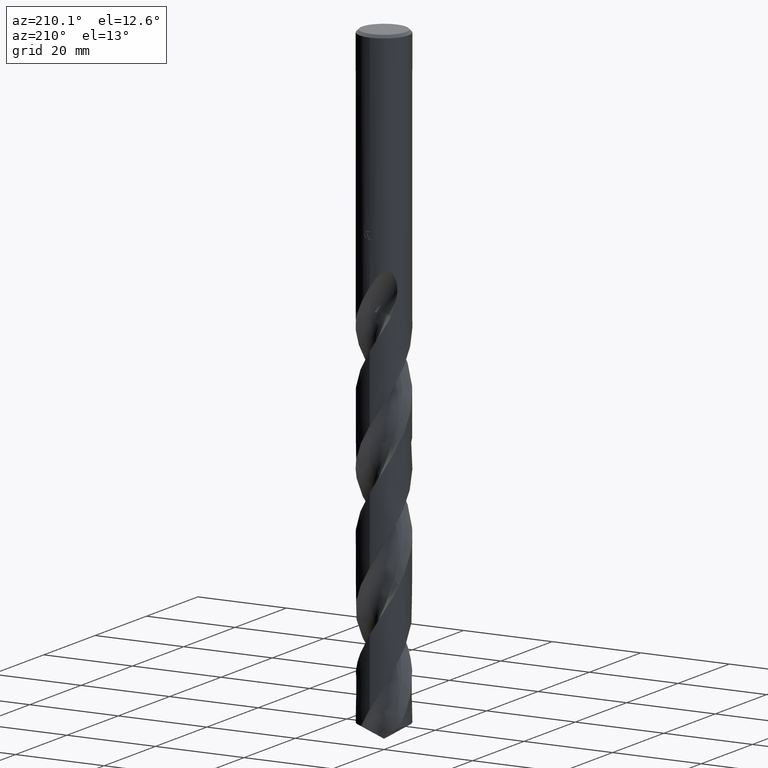
[diagram: clean part render]
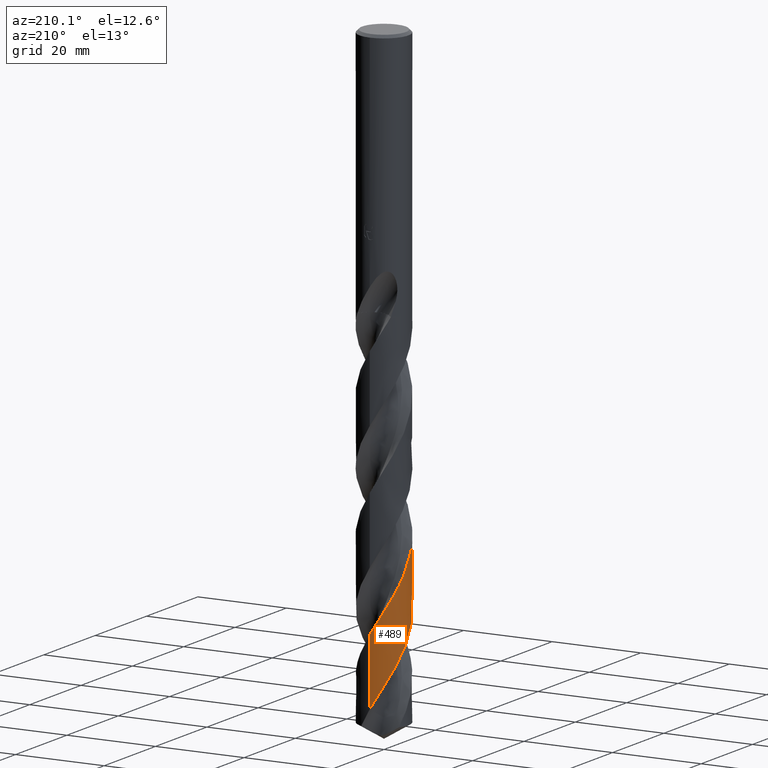
[diagram: same view with one face highlighted and labeled with its STEP entity id]
A machine part, auxiliary view. The second image highlights one B-rep face of the part: STEP entity #489.
In plain terms, the highlighted conical surface has half-angle 0 deg.
Its self-contained STEP definition (entity closure, byte-faithful):
#299=VERTEX_POINT('',#785);
#381=EDGE_CURVE('',#299,#647,#876,.T.);
#489=ADVANCED_FACE('',(#995),#996,.T.);
#527=VERTEX_POINT('',#1038);
#535=EDGE_CURVE('',#527,#299,#1046,.T.);
#543=EDGE_CURVE('',#647,#613,#1054,.T.);
#597=EDGE_CURVE('',#613,#527,#1111,.T.);
#613=VERTEX_POINT('',#1129);
#647=VERTEX_POINT('',#1163);
#785=CARTESIAN_POINT('',(4.0516365852814E-014,5.54999556858216,-135.019335527363));
#876=B_SPLINE_CURVE_WITH_KNOTS('',3,(#2819,#2820,#2821,#2822,#2823,#2824,#2825,#2826,#2827,#2828,#2829,#2830,#2831,#2832,#2833,#2834,#2835,#2836,#2837,#2838,#2839,#2840,#2841,#2842,#2843,#2844,#2845,#2846,#2847,#2848,#2849,#2850,#2851,#2852,#2853,#2854,#2855,#2856,#2857,#2858,#2859,#2860,#2861,#2862,#2863,#2864,#2865,#2866,#2867,#2868,#2869,#2870,#2871,#2872,#2873,#2874,#2875,#2876,#2877,#2878,#2879,#2880,#2881,#2882,#2883,#2884,#2885,#2886,#2887,#2888,#2889,#2890,#2891,#2892,#2893,#2894,#2895,#2896,#2897,#2898,#2899,#2900,#2901,#2902,#2903,#2904,#2905,#2906,#2907,#2908,#2909,#2910,#2911,#2912,#2913,#2914,#2915,#2916,#2917,#2918,#2919,#2920,#2921,#2922,#2923,#2924,#2925,#2926,#2927,#2928,#2929,#2930,#2931,#2932,#2933,#2934,#2935,#2936,#2937,#2938,#2939,#2940,#2941,#2942,#2943,#2944,#2945,#2946,#2947,#2948,#2949,#2950,#2951,#2952,#2953,#2954,#2955,#2956,#2957,#2958,#2959,#2960,#2961,#2962,#2963,#2964,#2965,#2966,#2967,#2968,#2969,#2970,#2971,#2972,#2973,#2974,#2975,#2976),.UNSPECIFIED.,.F.,.F.,(4,2,2,2,2,2,2,2,2,2,2,2,2,2,2,2,2,2,2,2,2,2,2,2,2,2,2,2,2,2,2,2,2,2,2,2,2,2,2,2,2,2,2,2,2,2,2,2,2,2,2,2,2,2,2,2,2,2,2,2,2,2,2,2,2,2,2,2,2,2,2,2,2,2,2,2,2,2,4),(0.0,1.46655868737656,3.41783290731923,5.26949046959095,5.74764628696772,7.95144570172864,9.54355369802347,11.1100185561849,12.6683297977426,14.2346658891406,15.793405792042,17.3595866141916,18.8742755995859,20.4399489714098,21.8692339213255,23.6874031627515,25.274196086025,27.2313110607265,27.9501409497025,29.3310392686889,30.0306007662757,31.6571620112534,33.4461055129922,34.5042760644231,36.0674687299325,37.4869222307285,39.0680116462478,39.7794021069182,40.4808167825242,41.8958329830743,42.6816166442228,44.2350344892799,45.6651994310543,47.1467608220412,48.5857734843821,49.9894940042185,51.4909340274777,52.2117138464143,53.4996941084221,55.4543609579214,56.4697179498838,57.932278954249,58.621262014019,59.3853137917778,60.7397031028553,61.5250086405784,63.0781470858341,64.5245192857018,65.9943866544358,67.5579108008403,69.0280307114055,70.5365061757088,71.9287085766405,73.5649313534265,74.2262717577189,75.2996262217071,76.7674338506758,77.455605137642,78.2118670554317,79.5873696145348,80.9319773874793,81.034744217811,82.6173234052096,84.0073804595535,84.2089754714259,87.1540691966913,87.287678610934,89.4047305821116,90.9724425704837,92.5239225540245,93.8689583896368,94.6101652206603,95.5988085917648,96.2995189479404,96.8108620683024,97.1636793984897,97.6055704357064,98.6709879472098,100.259175919108),.UNSPECIFIED.);
#995=FACE_OUTER_BOUND('',#4293,.T.);
#996=CONICAL_SURFACE('',#4294,5.54995,1.21545637188869E-006);
#1038=CARTESIAN_POINT('',(7.78198605925543E-014,5.54997740217284,-120.073172301008));
#1046=LINE('',#4610,#4611);
#1054=LINE('',#4652,#4653);
#1111=B_SPLINE_CURVE_WITH_KNOTS('',3,(#5406,#5407,#5408,#5409,#5410,#5411,#5412,#5413,#5414,#5415,#5416,#5417,#5418,#5419,#5420,#5421,#5422,#5423,#5424,#5425,#5426,#5427,#5428,#5429,#5430,#5431,#5432,#5433,#5434,#5435,#5436,#5437,#5438,#5439,#5440,#5441,#5442,#5443,#5444,#5445,#5446,#5447,#5448,#5449,#5450,#5451,#5452,#5453,#5454,#5455,#5456,#5457,#5458,#5459,#5460,#5461,#5462,#5463,#5464,#5465,#5466,#5467,#5468,#5469,#5470,#5471,#5472,#5473,#5474,#5475,#5476,#5477,#5478,#5479,#5480,#5481,#5482,#5483,#5484,#5485,#5486,#5487,#5488,#5489,#5490,#5491,#5492,#5493,#5494,#5495,#5496,#5497,#5498,#5499,#5500,#5501,#5502,#5503,#5504,#5505,#5506,#5507,#5508,#5509,#5510,#5511,#5512,#5513,#5514,#5515,#5516,#5517,#5518,#5519,#5520,#5521,#5522,#5523,#5524,#5525,#5526,#5527,#5528,#5529,#5530,#5531,#5532,#5533,#5534,#5535,#5536,#5537,#5538,#5539,#5540,#5541,#5542,#5543,#5544,#5545,#5546,#5547,#5548,#5549,#5550,#5551,#5552,#5553,#5554,#5555,#5556,#5557),.UNSPECIFIED.,.F.,.F.,(4,2,2,2,2,2,2,2,2,2,2,2,2,2,2,2,2,2,2,2,2,2,2,2,2,2,2,2,2,2,2,2,2,2,2,2,2,2,2,2,2,2,2,2,2,2,2,2,2,2,2,2,2,2,2,2,2,2,2,2,2,2,2,2,2,2,2,2,2,2,2,2,2,2,2,4),(0.0,0.310804689723535,0.413708914759205,0.462524665232662,0.497179689826137,0.572746394590917,1.21366839758523,1.39543087984104,1.49913271784174,1.61358112323344,1.79989630455332,2.16413089639086,2.72855537884365,3.06712363326307,3.59194006223824,4.38547983788959,5.1544747969328,6.16323675583631,6.64103513283072,8.87193999844643,10.4351457076785,12.0054893754131,13.4596326293848,15.3270830557485,16.7831916505017,18.7366398207587,19.325528829882,21.7380458015536,22.4138295781758,24.7549037396282,26.2259549372817,28.1734450641831,28.7982726862209,31.2411512368569,31.8963289447467,34.1609320071558,35.793498902235,37.7468183442879,38.3278624099232,40.7848142242462,41.427552585176,43.8166278533648,45.1989650045862,47.1452865496226,47.771600694453,50.1925006097275,50.8631473802622,53.1146865604938,54.1419020899004,56.6494135719897,57.2604966421588,59.64290567447,61.0293570938655,62.977255520373,63.5869839105672,65.9796522785373,66.669122121743,68.9468687563292,70.5470620358425,72.4957583459962,73.0946210391783,75.5595469728006,76.1969532170981,78.5353587724106,79.9982381375892,81.9451910641301,82.5549500951689,84.9649610297707,85.639551632239,87.9314464089321,89.0821031798557,91.1013641639327,92.6250984965075,93.7746721619667,95.5022485616983,97.2298336987217),.UNSPECIFIED.);
#1129=CARTESIAN_POINT('',(1.02480329572758E-013,-5.54994293024492,-91.7118681070603));
#1163=CARTESIAN_POINT('',(-1.29828638759846E-014,-5.54996109565772,-106.65721145902));
#2819=CARTESIAN_POINT('',(2.18190892951621,5.10311409075843,-138.665223564397));
#2820=CARTESIAN_POINT('',(1.94618635372523,5.20390007672846,-138.248985404182));
#2821=CARTESIAN_POINT('',(1.70380284410872,5.28821474393115,-137.834232006457));
#2822=CARTESIAN_POINT('',(1.12751252970514,5.44494676461815,-136.864116997864));
#2823=CARTESIAN_POINT('',(0.79130476142824,5.5038484370647,-136.308107589139));
#2824=CARTESIAN_POINT('',(0.129598243211646,5.55789119868548,-135.228628684634));
#2825=CARTESIAN_POINT('',(-0.194031830071094,5.55598458946377,-134.705801891367));
#2826=CARTESIAN_POINT('',(-0.598369128211378,5.51827311901813,-134.044150683669));
#2827=CARTESIAN_POINT('',(-0.681090967315803,5.50867455586978,-133.908237445287));
#2828=CARTESIAN_POINT('',(-1.14405845270469,5.44436158722863,-133.146602288955));
#2829=CARTESIAN_POINT('',(-1.51817058229382,5.35214659414686,-132.525703751407));
#2830=CARTESIAN_POINT('',(-2.14141494984061,5.12776120657281,-131.448603649751));
#2831=CARTESIAN_POINT('',(-2.39525384266939,5.01421641176461,-130.995444731727));
#2832=CARTESIAN_POINT('',(-2.88017058031493,4.75202539850199,-130.099183785098));
#2833=CARTESIAN_POINT('',(-3.11069064378841,4.60442107385557,-129.656452510474));
#2834=CARTESIAN_POINT('',(-3.54693073017167,4.27733379616394,-128.769792741288));
#2835=CARTESIAN_POINT('',(-3.75211245971791,4.09853415389738,-128.326297295317));
#2836=CARTESIAN_POINT('',(-4.13584925964094,3.7110420189222,-127.439670454345));
#2837=CARTESIAN_POINT('',(-4.31357303865453,3.50287551470505,-126.996981659824));
#2838=CARTESIAN_POINT('',(-4.63609871988204,3.06315247444927,-126.110257734466));
#2839=CARTESIAN_POINT('',(-4.78055090123767,2.83242866868245,-125.666644122063));
#2840=CARTESIAN_POINT('',(-5.03522746053901,2.35021268775503,-124.779959889544));
#2841=CARTESIAN_POINT('',(-5.14483322869769,2.09944966979377,-124.337326607388));
#2842=CARTESIAN_POINT('',(-5.32322558607001,1.59230175429177,-123.463201463102));
#2843=CARTESIAN_POINT('',(-5.39296121965349,1.33719699429047,-123.032157479422));
#2844=CARTESIAN_POINT('',(-5.49734428327799,0.810000700677633,-122.158173130703));
#2845=CARTESIAN_POINT('',(-5.5305485166486,0.538471964039422,-121.715725600712));
#2846=CARTESIAN_POINT('',(-5.55555563615371,0.016436630503861,-120.866124505689));
#2847=CARTESIAN_POINT('',(-5.55068149029343,-0.232979778070975,-120.45946681916));
#2848=CARTESIAN_POINT('',(-5.50159088163469,-0.797003016711333,-119.538267229211));
#2849=CARTESIAN_POINT('',(-5.44710344199682,-1.10988048979715,-119.025281124552));
#2850=CARTESIAN_POINT('',(-5.29555468595658,-1.68401258734366,-118.059671188007));
#2851=CARTESIAN_POINT('',(-5.2050586971808,-1.94581661411474,-117.608322761044));
#2852=CARTESIAN_POINT('',(-4.96000361755435,-2.51338935922523,-116.603307665221));
#2853=CARTESIAN_POINT('',(-4.79614066626358,-2.81343312378505,-116.051592927612));
#2854=CARTESIAN_POINT('',(-4.5361403496273,-3.20020122087029,-115.292353026761));
#2855=CARTESIAN_POINT('',(-4.46285115398641,-3.30164167377546,-115.088068919835));
#2856=CARTESIAN_POINT('',(-4.2386139511056,-3.59085655511561,-114.492092082536));
#2857=CARTESIAN_POINT('',(-4.07879015295984,-3.77144441820212,-114.101421360568));
#2858=CARTESIAN_POINT('',(-3.8207854628718,-4.02724269697341,-113.511410308575));
#2859=CARTESIAN_POINT('',(-3.73126255343179,-4.1103198044075,-113.313139016167));
#2860=CARTESIAN_POINT('',(-3.42490392620716,-4.37637821252096,-112.653180581099));
#2861=CARTESIAN_POINT('',(-3.19673682297169,-4.54572788869413,-112.190329276921));
#2862=CARTESIAN_POINT('',(-2.6921336628545,-4.8633397086117,-111.221290004934));
#2863=CARTESIAN_POINT('',(-2.41445715462676,-5.00696997571343,-110.716254562139));
#2864=CARTESIAN_POINT('',(-1.95607094209945,-5.19710658071429,-109.908092662058));
#2865=CARTESIAN_POINT('',(-1.78218363475013,-5.25928224396822,-109.60683913771));
#2866=CARTESIAN_POINT('',(-1.34415334478829,-5.39164262868626,-108.862418664372));
#2867=CARTESIAN_POINT('',(-1.0774029699528,-5.4512250553977,-108.420288138224));
#2868=CARTESIAN_POINT('',(-0.561938810155179,-5.52700494313188,-107.57357862838));
#2869=CARTESIAN_POINT('',(-0.3147321056359,-5.54655699320242,-107.169503283101));
#2870=CARTESIAN_POINT('',(0.208495899817631,-5.55289280124355,-106.317786844505));
#2871=CARTESIAN_POINT('',(0.484228286244485,-5.53568419252832,-105.870858053822));
#2872=CARTESIAN_POINT('',(0.880775343309873,-5.48103216420012,-105.220524893846));
#2873=CARTESIAN_POINT('',(1.00310752141023,-5.45996264065472,-105.018819922798));
#2874=CARTESIAN_POINT('',(1.24421891950097,-5.41007417180715,-104.617741745609));
#2875=CARTESIAN_POINT('',(1.36296989576053,-5.38138453781864,-104.418297825377));
#2876=CARTESIAN_POINT('',(1.71851259418785,-5.28295199881812,-103.817380728965));
#2877=CARTESIAN_POINT('',(1.95181064743351,-5.20130322521977,-103.416989251805));
#2878=CARTESIAN_POINT('',(2.30537317490545,-5.05035751977376,-102.792683636194));
#2879=CARTESIAN_POINT('',(2.42948372605126,-4.99183451244537,-102.569955164587));
#2880=CARTESIAN_POINT('',(2.79187749951655,-4.80425415095741,-101.906054157256));
#2881=CARTESIAN_POINT('',(3.02317492379879,-4.66218985514617,-101.463867313678));
#2882=CARTESIAN_POINT('',(3.44601008945151,-4.35768143865514,-100.617016505258));
#2883=CARTESIAN_POINT('',(3.63857112329905,-4.19822755124467,-100.212394677234));
#2884=CARTESIAN_POINT('',(4.00733685196394,-3.84839125954147,-99.38586199702));
#2885=CARTESIAN_POINT('',(4.18217258989494,-3.65763023317006,-98.9640298445685));
#2886=CARTESIAN_POINT('',(4.49951743793905,-3.25873792676906,-98.1349842411943));
#2887=CARTESIAN_POINT('',(4.64240013862431,-3.05175738640977,-97.7278986799066));
#2888=CARTESIAN_POINT('',(4.89605798144128,-2.62500433879366,-96.9212079861387));
#2889=CARTESIAN_POINT('',(5.00708762545577,-2.40641732344443,-96.5218319563095));
#2890=CARTESIAN_POINT('',(5.20608368888423,-1.94089508165861,-95.6975609775669));
#2891=CARTESIAN_POINT('',(5.29186664181791,-1.6931478343314,-95.2731792139547));
#2892=CARTESIAN_POINT('',(5.39251363824504,-1.31853412715266,-94.6431450700975));
#2893=CARTESIAN_POINT('',(5.42099127480738,-1.1960500019474,-94.4389124148447));
#2894=CARTESIAN_POINT('',(5.48866014032954,-0.852577563318762,-93.8690517776158));
#2895=CARTESIAN_POINT('',(5.51867097513028,-0.629823061869646,-93.5025454900616));
#2896=CARTESIAN_POINT('',(5.56003028902187,-0.06548335921149,-92.5824041846689));
#2897=CARTESIAN_POINT('',(5.55353213115095,0.276100692078814,-92.0310554030093));
#2898=CARTESIAN_POINT('',(5.49619252584372,0.790600497541936,-91.1880370255049));
#2899=CARTESIAN_POINT('',(5.46817998099854,0.965542083660717,-90.8990212012869));
#2900=CARTESIAN_POINT('',(5.37941799631367,1.38883983063827,-90.1953818725727));
#2901=CARTESIAN_POINT('',(5.30983044703363,1.63487905027109,-89.7815483547413));
#2902=CARTESIAN_POINT('',(5.1828156789784,1.98865342414391,-89.1708605996746));
#2903=CARTESIAN_POINT('',(5.13850512497341,2.10048311709103,-88.9753934194946));
#2904=CARTESIAN_POINT('',(5.03757730242147,2.33289314640022,-88.56267752118));
#2905=CARTESIAN_POINT('',(4.98017043431899,2.45305682056736,-88.3452720020989));
#2906=CARTESIAN_POINT('',(4.80896743722313,2.78055117928556,-87.7434355471059));
#2907=CARTESIAN_POINT('',(4.68615011360724,2.98292624066882,-87.3598745406618));
#2908=CARTESIAN_POINT('',(4.47205423017372,3.28958542425165,-86.7525175266041));
#2909=CARTESIAN_POINT('',(4.38937931563151,3.39910852883031,-86.5297851305537));
#2910=CARTESIAN_POINT('',(4.13154823631108,3.71558950999745,-85.8656904814446));
#2911=CARTESIAN_POINT('',(3.94509430026249,3.91301340429031,-85.4233183033994));
#2912=CARTESIAN_POINT('',(3.55823971558718,4.26668283069688,-84.5714376146287));
#2913=CARTESIAN_POINT('',(3.36030050866725,4.42424811506617,-84.1620171189039));
#2914=CARTESIAN_POINT('',(2.94106548407988,4.71357656034926,-83.3337070389471));
#2915=CARTESIAN_POINT('',(2.72006343391576,4.84446965781431,-82.9149490615049));
#2916=CARTESIAN_POINT('',(2.24669052984854,5.08219094319401,-82.0533634116917));
#2917=CARTESIAN_POINT('',(1.99394706477024,5.18657051833218,-81.6110515983333));
#2918=CARTESIAN_POINT('',(1.4905199450913,5.35219856043857,-80.7496212883481));
#2919=CARTESIAN_POINT('',(1.2415014535025,5.41536941590022,-80.3309478200746));
#2920=CARTESIAN_POINT('',(0.729946737384788,5.50801220172884,-79.4851576236523));
#2921=CARTESIAN_POINT('',(0.467766516781683,5.53645442031278,-79.0584353440313));
#2922=CARTESIAN_POINT('',(-0.0385973249951334,5.55511838972382,-78.2351225557465));
#2923=CARTESIAN_POINT('',(-0.281711158793415,5.54807575023344,-77.8389751778885));
#2924=CARTESIAN_POINT('',(-0.80695634048804,5.49834016632633,-76.9796500667253));
#2925=CARTESIAN_POINT('',(-1.08848934870472,5.44962446498485,-76.5174415278625));
#2926=CARTESIAN_POINT('',(-1.47716993467856,5.35097608345579,-75.8660527134921));
#2927=CARTESIAN_POINT('',(-1.58805192711044,5.31911875280648,-75.678640928792));
#2928=CARTESIAN_POINT('',(-1.87586499432721,5.22663976201877,-75.1865510939568));
#2929=CARTESIAN_POINT('',(-2.05091570732989,5.16046711916918,-74.8812539715424));
#2930=CARTESIAN_POINT('',(-2.45698294463681,4.98300959948306,-74.1602519979798));
#2931=CARTESIAN_POINT('',(-2.68426636746882,4.86435890338164,-73.7452879624638));
#2932=CARTESIAN_POINT('',(-3.00503861160988,4.66752498160312,-73.1338627652872));
#2933=CARTESIAN_POINT('',(-3.10526623653011,4.60144680811371,-72.9387927774127));
#2934=CARTESIAN_POINT('',(-3.3107956100984,4.45618715966432,-72.5288747704078));
#2935=CARTESIAN_POINT('',(-3.41556582442615,4.3764001902542,-72.3138712297803));
#2936=CARTESIAN_POINT('',(-3.70287533434552,4.14098439348366,-71.7088561754782));
#2937=CARTESIAN_POINT('',(-3.87841190581326,3.9770839102962,-71.3197378630821));
#2938=CARTESIAN_POINT('',(-4.20379223505501,3.63109262261282,-70.548436274987));
#2939=CARTESIAN_POINT('',(-4.35334718245448,3.4503177099483,-70.1680982162977));
#2940=CARTESIAN_POINT('',(-4.5013367586185,3.24651467251423,-69.7571602435785));
#2941=CARTESIAN_POINT('',(-4.51178694352438,3.23197629617616,-69.7279484431563));
#2942=CARTESIAN_POINT('',(-4.68245623351313,2.99208845437821,-69.2477960095823));
#2943=CARTESIAN_POINT('',(-4.82589318522265,2.75485037989409,-68.7988609851044));
#2944=CARTESIAN_POINT('',(-5.06121129701517,2.29019764781088,-67.9530625748242));
#2945=CARTESIAN_POINT('',(-5.15663548674658,2.06629006887,-67.5586191346945));
#2946=CARTESIAN_POINT('',(-5.24863202316913,1.80406078988519,-67.1051494774848));
#2947=CARTESIAN_POINT('',(-5.25995977902081,1.77076218515156,-67.0477143380681));
#2948=CARTESIAN_POINT('',(-5.4321416665692,1.24835474156015,-66.1503199980146));
#2949=CARTESIAN_POINT('',(-5.52449955937384,0.739379268159501,-65.3219452936437));
#2950=CARTESIAN_POINT('',(-5.54630297419032,0.201414826184306,-64.4446745317608));
#2951=CARTESIAN_POINT('',(-5.54710109468617,0.178081793202497,-64.4066131572951));
#2952=CARTESIAN_POINT('',(-5.55806977610111,-0.215211171386872,-63.7654618416549));
#2953=CARTESIAN_POINT('',(-5.53136529260695,-0.585192586654221,-63.167124342706));
#2954=CARTESIAN_POINT('',(-5.42112089125504,-1.21984654416238,-62.1185207854202));
#2955=CARTESIAN_POINT('',(-5.35466341618294,-1.48443721723668,-61.6696103532869));
#2956=CARTESIAN_POINT('',(-5.18403467868201,-2.00005291819128,-60.7868579985272));
#2957=CARTESIAN_POINT('',(-5.0831054404092,-2.24377654145506,-60.3710867461823));
#2958=CARTESIAN_POINT('',(-4.86053725563329,-2.68886790108848,-59.5732741583446));
#2959=CARTESIAN_POINT('',(-4.76425826795565,-2.84971222968035,-59.2674160925322));
#2960=CARTESIAN_POINT('',(-4.65447946175689,-3.02367097097183,-58.9252030435918));
#2961=CARTESIAN_POINT('',(-4.61501578773773,-3.08349824968148,-58.8029977555939));
#2962=CARTESIAN_POINT('',(-4.52245779634429,-3.21831149398208,-58.5151689294965));
#2963=CARTESIAN_POINT('',(-4.48843310646653,-3.26504977379341,-58.4054113201456));
#2964=CARTESIAN_POINT('',(-4.41491490737921,-3.36341120349777,-58.1830695426833));
#2965=CARTESIAN_POINT('',(-4.38336884637438,-3.40445006496141,-58.0914900348947));
#2966=CARTESIAN_POINT('',(-4.32664336636844,-3.47606870362098,-57.933838518209));
#2967=CARTESIAN_POINT('',(-4.3020882647152,-3.50642489320447,-57.8676763311156));
#2968=CARTESIAN_POINT('',(-4.25942595926778,-3.55801150955256,-57.7563463218869));
#2969=CARTESIAN_POINT('',(-4.23926320856845,-3.58204898776492,-57.7047346978355));
#2970=CARTESIAN_POINT('',(-4.19252300839709,-3.63672334484506,-57.5897102464672));
#2971=CARTESIAN_POINT('',(-4.16565619781283,-3.66748605059359,-57.5263327718958));
#2972=CARTESIAN_POINT('',(-4.07082866449812,-3.77357552349271,-57.3119543786022));
#2973=CARTESIAN_POINT('',(-3.99868876184072,-3.85019541915639,-57.1642020349161));
#2974=CARTESIAN_POINT('',(-3.80465332046217,-4.04387586400089,-56.8037035283301));
#2975=CARTESIAN_POINT('',(-3.67702065820945,-4.16102793861461,-56.5970858706923));
#2976=CARTESIAN_POINT('',(-3.53650753127202,-4.27720756554004,-56.3966));
#4293=EDGE_LOOP('',(#8524,#8525,#8526,#8527));
#4294=AXIS2_PLACEMENT_3D('',#8528,#8529,#8530);
#4610=CARTESIAN_POINT('',(-6.79677326425997E-016,5.54995,-97.5284117821985));
#4611=VECTOR('',#8579,1.0);
#4652=CARTESIAN_POINT('',(6.79623480253304E-016,-5.54995,-97.5284117821985));
#4653=VECTOR('',#8581,1.0);
#5406=CARTESIAN_POINT('',(-3.85760853507282,3.99001835429237,-56.3966));
#5407=CARTESIAN_POINT('',(-3.82052641861358,4.02587004276625,-56.4864490788962));
#5408=CARTESIAN_POINT('',(-3.78279775274604,4.06134925021088,-56.5763736884877));
#5409=CARTESIAN_POINT('',(-3.73151755372547,4.10821974530627,-56.6959571112128));
#5410=CARTESIAN_POINT('',(-3.71868514797773,4.11983939581686,-56.7256705950065));
#5411=CARTESIAN_POINT('',(-3.69963199362385,4.13692954214666,-56.7694599084626));
#5412=CARTESIAN_POINT('',(-3.69348296701984,4.14242042843956,-56.7835422959819));
#5413=CARTESIAN_POINT('',(-3.6829341218933,4.15179794973129,-56.8076143206384));
#5414=CARTESIAN_POINT('',(-3.67854482249359,4.15568745262306,-56.817605036366));
#5415=CARTESIAN_POINT('',(-3.66455196493598,4.16804737495866,-56.8493728895142));
#5416=CARTESIAN_POINT('',(-3.65491329993486,4.17650216956621,-56.8711330967785));
#5417=CARTESIAN_POINT('',(-3.56304070268217,4.25652658614077,-57.0773593731848));
#5418=CARTESIAN_POINT('',(-3.47898108004977,4.32558877901504,-57.2569952738162));
#5419=CARTESIAN_POINT('',(-3.36478358933791,4.41368912448929,-57.4902146536561));
#5420=CARTESIAN_POINT('',(-3.33931508802795,4.43299112190098,-57.5415946731731));
#5421=CARTESIAN_POINT('',(-3.29888037377744,4.46308527529445,-57.6222786440313));
#5422=CARTESIAN_POINT('',(-3.28411633826558,4.47396070097426,-57.6515569641086));
#5423=CARTESIAN_POINT('',(-3.25288853675142,4.49672492407979,-57.7131333897436));
#5424=CARTESIAN_POINT('',(-3.23642945463308,4.50858489037567,-57.7453805827102));
#5425=CARTESIAN_POINT('',(-3.19335202120939,4.53927149960786,-57.8294009175801));
#5426=CARTESIAN_POINT('',(-3.16648242011195,4.55805609633589,-57.8814044810759));
#5427=CARTESIAN_POINT('',(-3.08654500589464,4.61289118159386,-58.0351170336292));
#5428=CARTESIAN_POINT('',(-3.03309927751385,4.6482056602833,-58.1366037861948));
#5429=CARTESIAN_POINT('',(-2.89546680378603,4.73577014983546,-58.3960491316794));
#5430=CARTESIAN_POINT('',(-2.81223701303703,4.78564078619147,-58.5516976313638));
#5431=CARTESIAN_POINT('',(-2.67559909572232,4.86272062868386,-58.806090448229));
#5432=CARTESIAN_POINT('',(-2.6240029075077,4.89075304307436,-58.9017190142595));
#5433=CARTESIAN_POINT('',(-2.49160802991293,4.95999645150826,-59.1454268771733));
#5434=CARTESIAN_POINT('',(-2.41013969356468,5.00008915499757,-59.2937857260209));
#5435=CARTESIAN_POINT('',(-2.20319132565263,5.09570515976329,-59.6663999625162));
#5436=CARTESIAN_POINT('',(-2.07638526484018,5.14868719256839,-59.8908750739604));
#5437=CARTESIAN_POINT('',(-1.82277561711181,5.24372943225021,-60.3322038163978));
#5438=CARTESIAN_POINT('',(-1.6963586871258,5.28598525802502,-60.5484373813884));
#5439=CARTESIAN_POINT('',(-1.40027454045217,5.37320765550788,-61.0494016286606));
#5440=CARTESIAN_POINT('',(-1.23015326837449,5.41468011840035,-61.3331361459002));
#5441=CARTESIAN_POINT('',(-0.977179904849629,5.46383038070461,-61.7523110661549));
#5442=CARTESIAN_POINT('',(-0.89557020970587,5.47779731650752,-61.8871373351474));
#5443=CARTESIAN_POINT('',(-0.431596357516119,5.546569384335,-62.6510367263395));
#5444=CARTESIAN_POINT('',(-0.0443422530584924,5.56319190863213,-63.2781403397652));
#5445=CARTESIAN_POINT('',(0.612183896577505,5.52269624246831,-64.3477335469271));
#5446=CARTESIAN_POINT('',(0.881025762449132,5.48622534027617,-64.787830144722));
#5447=CARTESIAN_POINT('',(1.41230352839227,5.37410058850686,-65.6713734575256));
#5448=CARTESIAN_POINT('',(1.6741290127986,5.29839026684017,-66.1135335218256));
#5449=CARTESIAN_POINT('',(2.1657978213677,5.1160936609179,-66.9661442012583));
#5450=CARTESIAN_POINT('',(2.39586198022747,5.01247093162378,-67.3754838005986));
#5451=CARTESIAN_POINT('',(2.90332738550046,4.74098478783846,-68.3121047795444));
#5452=CARTESIAN_POINT('',(3.1748347829346,4.56364079101806,-68.8377582198417));
#5453=CARTESIAN_POINT('',(3.62790355752194,4.20756747840628,-69.7747094658705));
#5454=CARTESIAN_POINT('',(3.8154699573719,4.03824619964293,-70.1847113946974));
#5455=CARTESIAN_POINT('',(4.22605627971657,3.61339502786057,-71.1461303631646));
#5456=CARTESIAN_POINT('',(4.4386041011944,3.34889769077572,-71.6957207445853));
#5457=CARTESIAN_POINT('',(4.6821784340638,2.98148241721958,-72.412431615292));
#5458=CARTESIAN_POINT('',(4.73622501817817,2.89485735377816,-72.5783789221359));
#5459=CARTESIAN_POINT('',(4.99932024562449,2.44607156289699,-73.4246944569789));
#5460=CARTESIAN_POINT('',(5.16940842263126,2.06248832700494,-74.1033416952856));
#5461=CARTESIAN_POINT('',(5.32991387896586,1.55157696514117,-74.9740712857863));
#5462=CARTESIAN_POINT('',(5.36147967992573,1.43871593210092,-75.1644846483322));
#5463=CARTESIAN_POINT('',(5.48633687371467,0.930843984918472,-76.0152133189909));
#5464=CARTESIAN_POINT('',(5.53972544274415,0.527198856606738,-76.6740151672021));
#5465=CARTESIAN_POINT('',(5.55417602946231,-0.133753673498633,-77.748940994622));
#5466=CARTESIAN_POINT('',(5.54215800429911,-0.388809106281651,-78.1631963430937));
#5467=CARTESIAN_POINT('',(5.47361517623173,-0.977324444124675,-79.1273871985937));
#5468=CARTESIAN_POINT('',(5.4040504830096,-1.30844175906029,-79.6755019551106));
#5469=CARTESIAN_POINT('',(5.27292526437777,-1.73485325526239,-80.4008383487226));
#5470=CARTESIAN_POINT('',(5.23805494261434,-1.83745246542084,-80.5769384185547));
#5471=CARTESIAN_POINT('',(5.05224460485108,-2.33579255649819,-81.4421381157926));
#5472=CARTESIAN_POINT('',(4.85929570602769,-2.71450155511609,-82.1293990165018));
#5473=CARTESIAN_POINT('',(4.56228315927483,-3.16231490840508,-83.0030735593676));
#5474=CARTESIAN_POINT('',(4.49658977780222,-3.25504813524676,-83.1877264920517));
#5475=CARTESIAN_POINT('',(4.1913846664419,-3.65899621344004,-84.0112734425997));
#5476=CARTESIAN_POINT('',(3.92202628603568,-3.94636295953231,-84.6488885876509));
#5477=CARTESIAN_POINT('',(3.41010873411459,-4.38783943500174,-85.7480785656892));
#5478=CARTESIAN_POINT('',(3.18187730834482,-4.55604590771847,-86.2077903054805));
#5479=CARTESIAN_POINT('',(2.6547371681002,-4.88557577368601,-87.2194067206792));
#5480=CARTESIAN_POINT('',(2.35167440890966,-5.03847783354398,-87.7692014715249));
#5481=CARTESIAN_POINT('',(1.9426976319045,-5.19979890125164,-88.4839943794198));
#5482=CARTESIAN_POINT('',(1.84796655810107,-5.23421402257827,-88.6478131855478));
#5483=CARTESIAN_POINT('',(1.34811520687927,-5.40054966845187,-89.5048420002225));
#5484=CARTESIAN_POINT('',(0.929597175340316,-5.48811306519513,-90.1961770134783));
#5485=CARTESIAN_POINT('',(0.394070997233518,-5.53705696023015,-91.0705116503871));
#5486=CARTESIAN_POINT('',(0.282769495561354,-5.54385495644804,-91.2517092605405));
#5487=CARTESIAN_POINT('',(-0.242796954334328,-5.56009022052545,-92.1070615924291));
#5488=CARTESIAN_POINT('',(-0.657185923839567,-5.52646477769886,-92.7795544767697));
#5489=CARTESIAN_POINT('',(-1.29940961181704,-5.40101423819887,-93.8434836884016));
#5490=CARTESIAN_POINT('',(-1.53150195482041,-5.33983670380516,-94.2330231819121));
#5491=CARTESIAN_POINT('',(-2.07893551547557,-5.15692148403625,-95.1722916868052));
#5492=CARTESIAN_POINT('',(-2.3887114413893,-5.02095855611669,-95.7203310319914));
#5493=CARTESIAN_POINT('',(-2.77940850062455,-4.80506279344368,-96.4460888744285));
#5494=CARTESIAN_POINT('',(-2.87293930109319,-4.74973202877198,-96.6226864781938));
#5495=CARTESIAN_POINT('',(-3.31975288983368,-4.46738306467497,-97.4824996262616));
#5496=CARTESIAN_POINT('',(-3.64822255067142,-4.20343987565404,-98.1639504069258));
#5497=CARTESIAN_POINT('',(-4.02568321667953,-3.82222232681398,-99.0361943716331));
#5498=CARTESIAN_POINT('',(-4.10492877028436,-3.73698588671739,-99.2252897376378));
#5499=CARTESIAN_POINT('',(-4.43826416944977,-3.35504927815763,-100.049886944951));
#5500=CARTESIAN_POINT('',(-4.66336909616986,-3.03440939208859,-100.684138872738));
#5501=CARTESIAN_POINT('',(-4.9394314991798,-2.53688641064053,-101.609328467364));
#5502=CARTESIAN_POINT('',(-5.01834360996251,-2.37697025560261,-101.898843352726));
#5503=CARTESIAN_POINT('',(-5.26291827068713,-1.81464579180988,-102.896428182601));
#5504=CARTESIAN_POINT('',(-5.38896511634437,-1.39660097675845,-103.60214119207));
#5505=CARTESIAN_POINT('',(-5.48337912929031,-0.863621084766293,-104.482180016904));
#5506=CARTESIAN_POINT('',(-5.49887776150652,-0.758700115635384,-104.654539467535));
#5507=CARTESIAN_POINT('',(-5.56002713224977,-0.242929961291671,-105.49945447659));
#5508=CARTESIAN_POINT('',(-5.56269304522082,0.171819069596214,-106.170373896789));
#5509=CARTESIAN_POINT('',(-5.49396535980877,0.822397660126371,-107.234045308572));
#5510=CARTESIAN_POINT('',(-5.45315007909731,1.05975661185609,-107.624921940069));
#5511=CARTESIAN_POINT('',(-5.31832337348626,1.62225687328984,-108.566195017344));
#5512=CARTESIAN_POINT('',(-5.20968664500595,1.9430897688575,-109.114882027106));
#5513=CARTESIAN_POINT('',(-5.0295281265658,2.34886358749587,-109.836713292894));
#5514=CARTESIAN_POINT('',(-4.98383087620992,2.44432762815914,-110.008713934249));
#5515=CARTESIAN_POINT('',(-4.74554270806475,2.90763328069874,-110.856251035597));
#5516=CARTESIAN_POINT('',(-4.51475825565024,3.25447807447595,-111.530116244937));
#5517=CARTESIAN_POINT('',(-4.17035008845347,3.6639667617549,-112.400084836267));
#5518=CARTESIAN_POINT('',(-4.09037719639496,3.7530363176619,-112.594566294266));
#5519=CARTESIAN_POINT('',(-3.73411781516466,4.12489991898531,-113.432224896181));
#5520=CARTESIAN_POINT('',(-3.43085992957008,4.38038195825303,-114.074072499051));
#5521=CARTESIAN_POINT('',(-2.8726608755444,4.75680388863184,-115.168798572749));
#5522=CARTESIAN_POINT('',(-2.63105301445699,4.89457279147312,-115.619806939003));
#5523=CARTESIAN_POINT('',(-2.07477424488511,5.158666977546,-116.62187920808));
#5524=CARTESIAN_POINT('',(-1.7566084057258,5.27551093326018,-117.170897580535));
#5525=CARTESIAN_POINT('',(-1.32921060698183,5.38945549151449,-117.890050469299));
#5526=CARTESIAN_POINT('',(-1.22803208664887,5.41340584149823,-118.059033014168));
#5527=CARTESIAN_POINT('',(-0.707335822229506,5.52131685425073,-118.924099414497));
#5528=CARTESIAN_POINT('',(-0.279660996490725,5.55942738614244,-119.61826890606));
#5529=CARTESIAN_POINT('',(0.258847311051153,5.54504313084238,-120.49412565051));
#5530=CARTESIAN_POINT('',(0.369352517279755,5.53877952382165,-120.673979815553));
#5531=CARTESIAN_POINT('',(0.883987106528889,5.4941429464863,-121.514280335152));
#5532=CARTESIAN_POINT('',(1.28342604248863,5.41479452053648,-122.173219477778));
#5533=CARTESIAN_POINT('',(1.91293381825846,5.21608218782883,-123.24654143652));
#5534=CARTESIAN_POINT('',(2.14958440189859,5.1230895075908,-123.659072149472));
#5535=CARTESIAN_POINT('',(2.68426068004009,4.86941850089083,-124.622100503843));
#5536=CARTESIAN_POINT('',(2.97578349603146,4.69695186908197,-125.170776051891));
#5537=CARTESIAN_POINT('',(3.3357155478328,4.43695202119633,-125.89268363538));
#5538=CARTESIAN_POINT('',(3.41974478041065,4.37251431959738,-126.06477363552));
#5539=CARTESIAN_POINT('',(3.82646206917405,4.04172995900238,-126.917609995746));
#5540=CARTESIAN_POINT('',(4.12025180363402,3.74180251144628,-127.59662391701));
#5541=CARTESIAN_POINT('',(4.44958309427464,3.31923192095706,-128.467686983133));
#5542=CARTESIAN_POINT('',(4.51864892809057,3.22457703848715,-128.658064058577));
#5543=CARTESIAN_POINT('',(4.8089396181963,2.79907930915256,-129.495907857711));
#5544=CARTESIAN_POINT('',(4.99725866997915,2.44709410013471,-130.141999908898));
#5545=CARTESIAN_POINT('',(5.2211398277078,1.8926286010868,-131.114262487548));
#5546=CARTESIAN_POINT('',(5.28588502604531,1.7034465370921,-131.438827245645));
#5547=CARTESIAN_POINT('',(5.4357404940953,1.17389973842933,-132.334305778849));
#5548=CARTESIAN_POINT('',(5.49904979122372,0.828191853540338,-132.90375419639));
#5549=CARTESIAN_POINT('',(5.55213855077745,0.215053659938444,-133.904471363713));
#5550=CARTESIAN_POINT('',(5.5560729926234,-0.0498763077033384,-134.334225768783));
#5551=CARTESIAN_POINT('',(5.52981207402676,-0.513292705946353,-135.089439709306));
#5552=CARTESIAN_POINT('',(5.50777525632577,-0.71185572575816,-135.41398366796));
#5553=CARTESIAN_POINT('',(5.4259399364995,-1.20485971510169,-136.226665973756));
#5554=CARTESIAN_POINT('',(5.35289513547605,-1.49630234810164,-136.713304908526));
#5555=CARTESIAN_POINT('',(5.16049742060711,-2.06438550202185,-137.689546751357));
#5556=CARTESIAN_POINT('',(5.04140424663827,-2.34025084252839,-138.17718252444));
#5557=CARTESIAN_POINT('',(4.90055386764511,-2.6052009116973,-138.665223564397));
#8524=ORIENTED_EDGE('',*,*,#535,.T.);
#8525=ORIENTED_EDGE('',*,*,#381,.T.);
#8526=ORIENTED_EDGE('',*,*,#543,.T.);
#8527=ORIENTED_EDGE('',*,*,#597,.T.);
#8528=CARTESIAN_POINT('',(0.0,0.0,-97.5284117821985));
#8529=DIRECTION('',(0.0,-0.0,-1.0));
#8530=DIRECTION('',(0.0,1.0,0.0));
#8579=DIRECTION('',(-1.48845559580842E-022,1.21545637188839E-006,-0.999999999999261));
#8581=DIRECTION('',(-1.48845559580842E-022,1.21545637188839E-006,0.999999999999261));